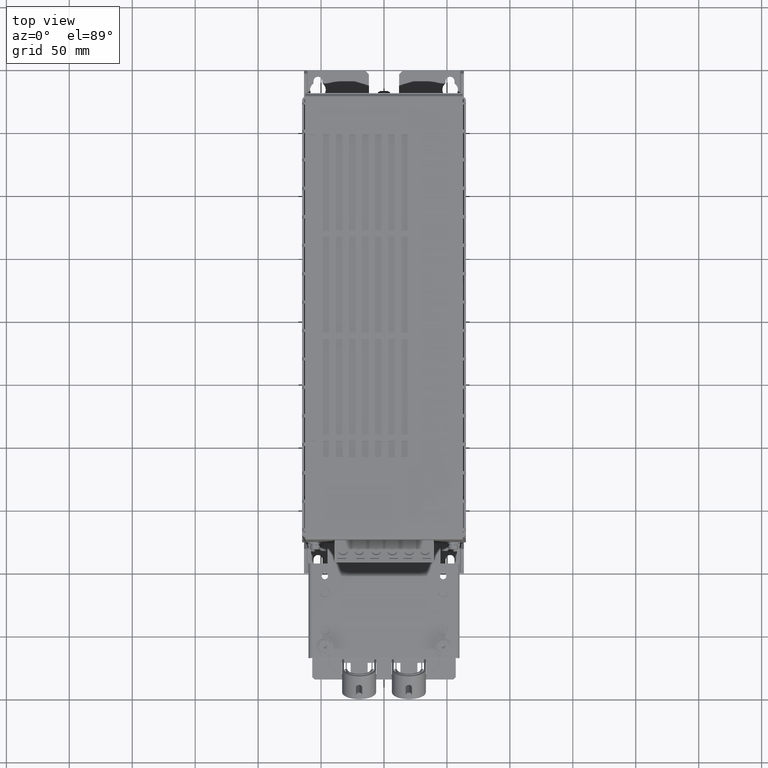
[diagram: clean part render]
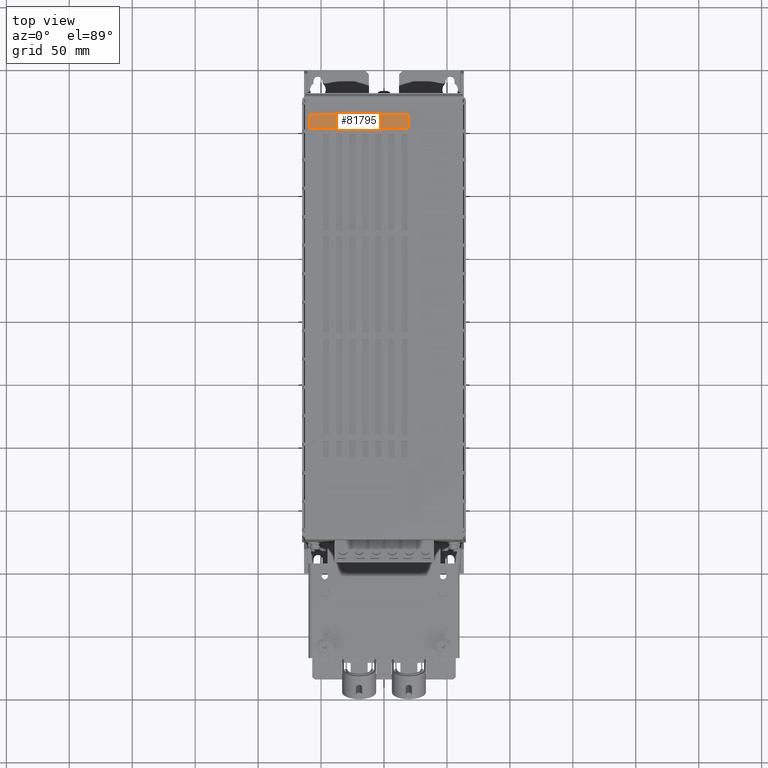
[diagram: same view with one face highlighted and labeled with its STEP entity id]
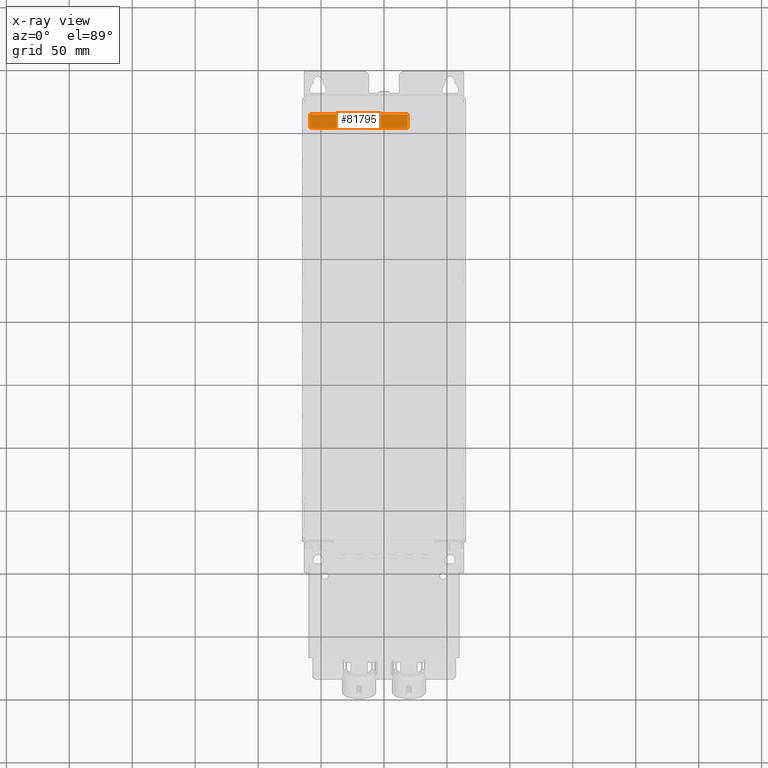
[diagram: x-ray of the same camera — body ghosted, the highlighted face saturated]
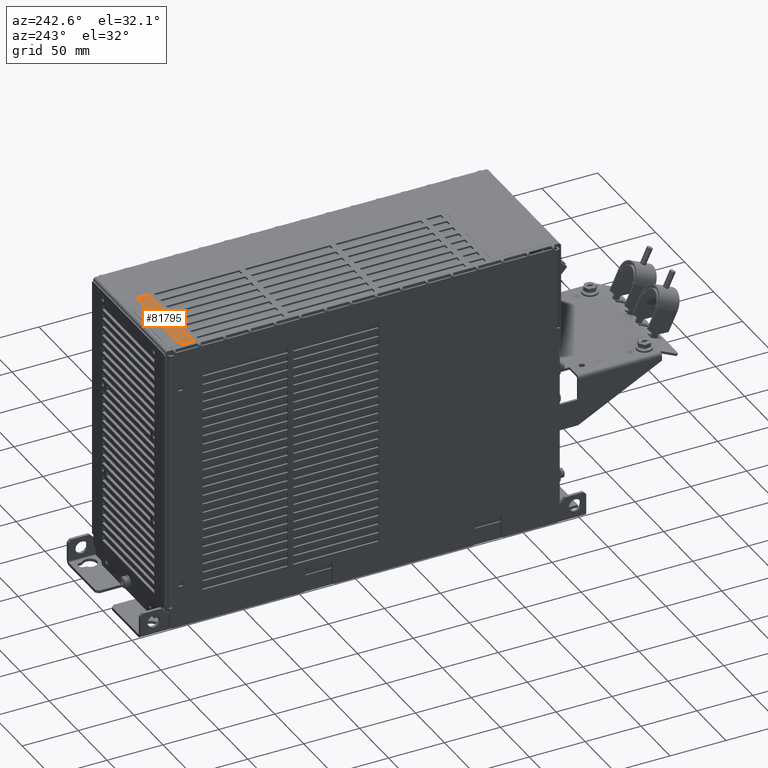
[diagram: same view with one face highlighted and labeled with its STEP entity id]
A machine part, top view. The second image highlights one B-rep face of the part: STEP entity #81795.
The next image is the same camera in x-ray: the body ghosted, the highlighted face saturated — about 0% of this face is hidden behind the body in this view.
A second angle (auxiliary view) of the same face is appended — the face is thin or edge-on in the first view.
In plain terms, the highlighted planar face has unit normal (0, 0, 1).
Its self-contained STEP definition (entity closure, byte-faithful):
#20086=DIRECTION('',(0.E0,1.E0,0.E0));
#20087=VECTOR('',#20086,1.1E-2);
#20088=CARTESIAN_POINT('',(-5.9E-2,1.495E-1,2.5996E-1));
#20089=LINE('',#20088,#20087);
#20090=DIRECTION('',(1.E0,0.E0,0.E0));
#20091=VECTOR('',#20090,7.8E-2);
#20092=CARTESIAN_POINT('',(-5.9E-2,1.605E-1,2.5996E-1));
#20093=LINE('',#20092,#20091);
#20094=DIRECTION('',(0.E0,-1.E0,0.E0));
#20095=VECTOR('',#20094,1.1E-2);
#20096=CARTESIAN_POINT('',(1.9E-2,1.605E-1,2.5996E-1));
#20097=LINE('',#20096,#20095);
#20098=DIRECTION('',(-1.E0,0.E0,0.E0));
#20099=VECTOR('',#20098,7.8E-2);
#20100=CARTESIAN_POINT('',(1.9E-2,1.495E-1,2.5996E-1));
#20101=LINE('',#20100,#20099);
#35692=CARTESIAN_POINT('',(-5.9E-2,1.495E-1,2.5996E-1));
#35693=CARTESIAN_POINT('',(-5.9E-2,1.605E-1,2.5996E-1));
#35694=VERTEX_POINT('',#35692);
#35695=VERTEX_POINT('',#35693);
#35696=CARTESIAN_POINT('',(1.9E-2,1.605E-1,2.5996E-1));
#35697=VERTEX_POINT('',#35696);
#35698=CARTESIAN_POINT('',(1.9E-2,1.495E-1,2.5996E-1));
#35699=VERTEX_POINT('',#35698);
#81784=CARTESIAN_POINT('',(0.E0,0.E0,2.5996E-1));
#81785=DIRECTION('',(0.E0,0.E0,1.E0));
#81786=DIRECTION('',(1.E0,0.E0,0.E0));
#81787=AXIS2_PLACEMENT_3D('',#81784,#81785,#81786);
#81788=PLANE('',#81787);
#81789=ORIENTED_EDGE('',*,*,#81710,.T.);
#81790=ORIENTED_EDGE('',*,*,#81772,.T.);
#81791=ORIENTED_EDGE('',*,*,#81752,.T.);
#81792=ORIENTED_EDGE('',*,*,#81731,.T.);
#81793=EDGE_LOOP('',(#81789,#81790,#81791,#81792));
#81794=FACE_OUTER_BOUND('',#81793,.F.);
#81795=ADVANCED_FACE('',(#81794),#81788,.T.);
#81710=EDGE_CURVE('',#35694,#35695,#20089,.T.);
#81731=EDGE_CURVE('',#35699,#35694,#20101,.T.);
#81752=EDGE_CURVE('',#35697,#35699,#20097,.T.);
#81772=EDGE_CURVE('',#35695,#35697,#20093,.T.);